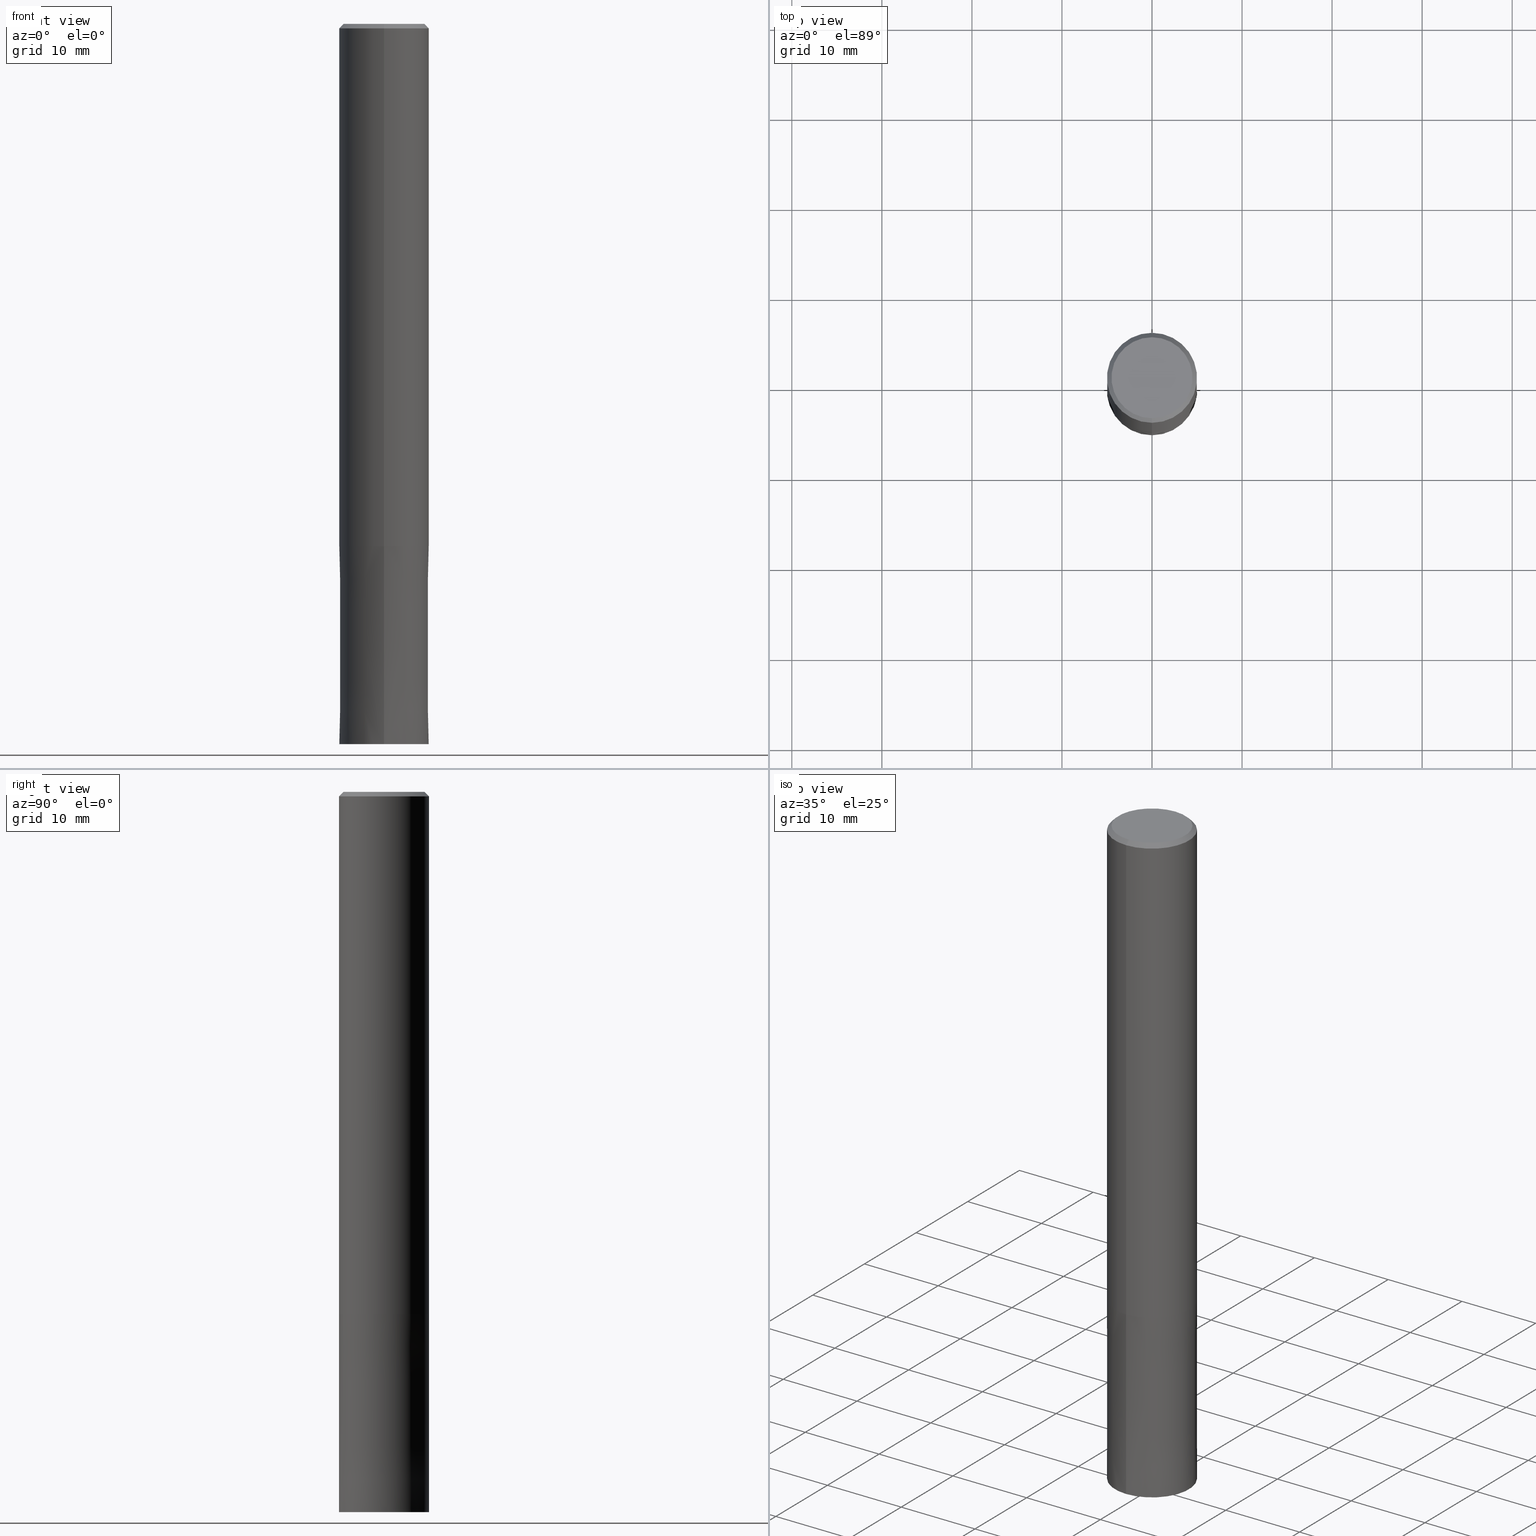
[diagram: canonical four-view strip — front | top / right | iso, engineering-drawing reading convention]
A machine part, canonical four-view strip (front | top / right | iso — engineering-drawing reading convention). The complete STEP part file that produces these views, byte-faithful:
ISO-10303-21;
HEADER;
FILE_DESCRIPTION(('no description'),'unknown implementation level');
FILE_NAME('CZS4100-2200-Huellk.stp','  ',('CIMSOURCE GmbH'),('CADClick - KiM GmbH - www.kimweb.de'),'unknown preprocess','ACIS','unknown authorization');
FILE_SCHEMA(('automotive_design'));
ENDSEC;
DATA;
#1=MECHANICAL_DESIGN_GEOMETRIC_PRESENTATION_REPRESENTATION(' ',(#10,#11,#12,#13,#14,#15,#16,#17,#18,#19,#20,#21,#22,#23,#24,#25,#26,#27,#28,#29,#30,#31,#32,#33,#34,#35,#36,#37,#38,#39,#40,#41,#42,#43,#44,#45),#6);
#2=PRODUCT_DEFINITION_CONTEXT('',#46,'design');
#3=APPLICATION_PROTOCOL_DEFINITION('INTERNATIONAL STANDARD','automotive_design',1994,#46);
#4=PRODUCT_CATEGORY_RELATIONSHIP('NONE','NONE',#47,#48);
#5=SHAPE_DEFINITION_REPRESENTATION(#49,#50);
#6= (GEOMETRIC_REPRESENTATION_CONTEXT(3)GLOBAL_UNCERTAINTY_ASSIGNED_CONTEXT((#53))GLOBAL_UNIT_ASSIGNED_CONTEXT((#55,#56,#57))REPRESENTATION_CONTEXT('NONE','WORKSPACE'));
#10=STYLED_ITEM('',(#59),#60);
#11=STYLED_ITEM('',(#61),#62);
#12=STYLED_ITEM('',(#63),#64);
#13=STYLED_ITEM('',(#65),#66);
#14=STYLED_ITEM('',(#67),#68);
#15=STYLED_ITEM('',(#69),#70);
#16=STYLED_ITEM('',(#71),#72);
#17=STYLED_ITEM('',(#73),#74);
#18=STYLED_ITEM('',(#75),#76);
#19=STYLED_ITEM('',(#77),#78);
#20=STYLED_ITEM('',(#79),#80);
#21=STYLED_ITEM('',(#81),#82);
#22=STYLED_ITEM('',(#83),#84);
#23=STYLED_ITEM('',(#85),#86);
#24=STYLED_ITEM('',(#87),#88);
#25=STYLED_ITEM('',(#89),#90);
#26=STYLED_ITEM('',(#91),#92);
#27=STYLED_ITEM('',(#93),#94);
#28=STYLED_ITEM('',(#95),#96);
#29=STYLED_ITEM('',(#97),#98);
#30=STYLED_ITEM('',(#99),#100);
#31=STYLED_ITEM('',(#101),#102);
#32=STYLED_ITEM('',(#103),#104);
#33=STYLED_ITEM('',(#105),#106);
#34=STYLED_ITEM('',(#107),#108);
#35=STYLED_ITEM('',(#109),#110);
#36=STYLED_ITEM('',(#111),#112);
#37=STYLED_ITEM('',(#113),#114);
#38=STYLED_ITEM('',(#115),#116);
#39=STYLED_ITEM('',(#117),#118);
#40=STYLED_ITEM('',(#119),#120);
#41=STYLED_ITEM('',(#121),#122);
#42=STYLED_ITEM('',(#123),#124);
#43=STYLED_ITEM('',(#125),#126);
#44=STYLED_ITEM('',(#127),#128);
#45=STYLED_ITEM('',(#129),#130);
#46=APPLICATION_CONTEXT(' ');
#47=PRODUCT_CATEGORY('part','NONE');
#48=PRODUCT_RELATED_PRODUCT_CATEGORY('detail',' ',(#131));
#49=PRODUCT_DEFINITION_SHAPE('NONE','NONE',#132);
#50=ADVANCED_BREP_SHAPE_REPRESENTATION('1',(#126,#133),#6);
#53=UNCERTAINTY_MEASURE_WITH_UNIT(LENGTH_MEASURE(1.0E-006),#55,'','');
#55= (CONVERSION_BASED_UNIT('MILLIMETRE',#136)LENGTH_UNIT()NAMED_UNIT(#139));
#56= (NAMED_UNIT(#141)PLANE_ANGLE_UNIT()SI_UNIT($,.RADIAN.));
#57= (NAMED_UNIT(#141)SOLID_ANGLE_UNIT()SI_UNIT($,.STERADIAN.));
#59=PRESENTATION_STYLE_ASSIGNMENT((#147));
#60=EDGE_CURVE('',#104,#108,#148,.T.);
#61=PRESENTATION_STYLE_ASSIGNMENT((#149));
#62=EDGE_CURVE('',#108,#86,#150,.T.);
#63=PRESENTATION_STYLE_ASSIGNMENT((#151));
#64=EDGE_CURVE('',#94,#108,#152,.T.);
#65=PRESENTATION_STYLE_ASSIGNMENT((#153));
#66=EDGE_CURVE('',#104,#106,#154,.T.);
#67=PRESENTATION_STYLE_ASSIGNMENT((#155));
#68=EDGE_CURVE('',#82,#98,#156,.T.);
#69=PRESENTATION_STYLE_ASSIGNMENT((#157));
#70=EDGE_CURVE('',#124,#112,#158,.T.);
#71=PRESENTATION_STYLE_ASSIGNMENT((#159));
#72=EDGE_CURVE('',#124,#98,#160,.T.);
#73=PRESENTATION_STYLE_ASSIGNMENT((#161));
#74=EDGE_CURVE('',#94,#106,#162,.T.);
#75=PRESENTATION_STYLE_ASSIGNMENT((#163));
#76=EDGE_CURVE('',#112,#82,#164,.T.);
#77=PRESENTATION_STYLE_ASSIGNMENT((#165));
#78=EDGE_CURVE('',#84,#86,#166,.T.);
#79=PRESENTATION_STYLE_ASSIGNMENT((#167));
#80=ADVANCED_FACE('',(#168,#169),#170,.T.);
#81=PRESENTATION_STYLE_ASSIGNMENT((#171));
#82=VERTEX_POINT('',#172);
#83=PRESENTATION_STYLE_ASSIGNMENT((#173));
#84=VERTEX_POINT('',#174);
#85=PRESENTATION_STYLE_ASSIGNMENT((#175));
#86=VERTEX_POINT('',#176);
#87=PRESENTATION_STYLE_ASSIGNMENT((#177));
#88=EDGE_CURVE('',#84,#94,#178,.T.);
#89=PRESENTATION_STYLE_ASSIGNMENT((#179));
#90=EDGE_CURVE('',#98,#124,#180,.T.);
#91=PRESENTATION_STYLE_ASSIGNMENT((#181));
#92=ADVANCED_FACE('',(#182),#183,.T.);
#93=PRESENTATION_STYLE_ASSIGNMENT((#184));
#94=VERTEX_POINT('',#185);
#95=PRESENTATION_STYLE_ASSIGNMENT((#186));
#96=EDGE_CURVE('',#86,#84,#187,.T.);
#97=PRESENTATION_STYLE_ASSIGNMENT((#188));
#98=VERTEX_POINT('',#189);
#99=PRESENTATION_STYLE_ASSIGNMENT((#190));
#100=ADVANCED_FACE('',(#191),#192,.T.);
#101=PRESENTATION_STYLE_ASSIGNMENT((#193));
#102=EDGE_CURVE('',#108,#94,#194,.T.);
#103=PRESENTATION_STYLE_ASSIGNMENT((#195));
#104=VERTEX_POINT('',#196);
#105=PRESENTATION_STYLE_ASSIGNMENT((#197));
#106=VERTEX_POINT('',#198);
#107=PRESENTATION_STYLE_ASSIGNMENT((#199));
#108=VERTEX_POINT('',#200);
#109=PRESENTATION_STYLE_ASSIGNMENT((#201));
#110=ADVANCED_FACE('',(#202),#203,.T.);
#111=PRESENTATION_STYLE_ASSIGNMENT((#204));
#112=VERTEX_POINT('',#205);
#113=PRESENTATION_STYLE_ASSIGNMENT((#206));
#114=ADVANCED_FACE('',(#207),#208,.T.);
#115=PRESENTATION_STYLE_ASSIGNMENT((#209));
#116=ADVANCED_FACE('',(#210),#211,.T.);
#117=PRESENTATION_STYLE_ASSIGNMENT((#212));
#118=EDGE_CURVE('',#82,#112,#213,.T.);
#119=PRESENTATION_STYLE_ASSIGNMENT((#214));
#120=ADVANCED_FACE('',(#215),#216,.T.);
#121=PRESENTATION_STYLE_ASSIGNMENT((#217));
#122=ADVANCED_FACE('',(#218),#219,.T.);
#123=PRESENTATION_STYLE_ASSIGNMENT((#220));
#124=VERTEX_POINT('',#221);
#125=PRESENTATION_STYLE_ASSIGNMENT((#222));
#126=MANIFOLD_SOLID_BREP('1',#223);
#127=PRESENTATION_STYLE_ASSIGNMENT((#224));
#128=ADVANCED_FACE('',(#225),#226,.T.);
#129=PRESENTATION_STYLE_ASSIGNMENT((#227));
#130=EDGE_CURVE('',#106,#104,#228,.T.);
#131=PRODUCT('1','1','PART-1-DESC',(#229));
#132=PRODUCT_DEFINITION('NONE','NONE',#230,#2);
#133=AXIS2_PLACEMENT_3D('',#231,#232,#233);
#136=LENGTH_MEASURE_WITH_UNIT(LENGTH_MEASURE(1.0),#234);
#139=DIMENSIONAL_EXPONENTS(1.0,0.0,0.0,0.0,0.0,0.0,0.0);
#141=DIMENSIONAL_EXPONENTS(0.0,0.0,0.0,0.0,0.0,0.0,0.0);
#147=CURVE_STYLE('',#235,POSITIVE_LENGTH_MEASURE(1.0E-006),#236);
#148=LINE('',#237,#238);
#149=CURVE_STYLE('',#239,POSITIVE_LENGTH_MEASURE(1.0E-006),#240);
#150=LINE('',#241,#242);
#151=CURVE_STYLE('',#243,POSITIVE_LENGTH_MEASURE(1.0E-006),#244);
#152=CIRCLE('',#245,5.0);
#153=CURVE_STYLE('',#246,POSITIVE_LENGTH_MEASURE(1.0E-006),#247);
#154=CIRCLE('',#248,4.5);
#155=CURVE_STYLE('',#249,POSITIVE_LENGTH_MEASURE(1.0E-006),#250);
#156=LINE('',#251,#252);
#157=CURVE_STYLE('',#253,POSITIVE_LENGTH_MEASURE(1.0E-006),#254);
#158=LINE('',#255,#256);
#159=CURVE_STYLE('',#257,POSITIVE_LENGTH_MEASURE(1.0E-006),#258);
#160=CIRCLE('',#259,4.9999);
#161=CURVE_STYLE('',#260,POSITIVE_LENGTH_MEASURE(1.0E-006),#261);
#162=LINE('',#262,#263);
#163=CURVE_STYLE('',#264,POSITIVE_LENGTH_MEASURE(1.0E-006),#265);
#164=CIRCLE('',#266,5.0);
#165=CURVE_STYLE('',#267,POSITIVE_LENGTH_MEASURE(1.0E-006),#268);
#166=CIRCLE('',#269,5.0);
#167=SURFACE_STYLE_USAGE(.BOTH.,#270);
#168=FACE_OUTER_BOUND('',#271,.T.);
#169=FACE_BOUND('',#272,.T.);
#170=PLANE('',#273);
#171=POINT_STYLE(' ',#274,POSITIVE_LENGTH_MEASURE(1.0E-006),#275);
#172=CARTESIAN_POINT('',(6.12303176911189E-016,-5.0,-80.0));
#173=POINT_STYLE(' ',#276,POSITIVE_LENGTH_MEASURE(1.0E-006),#277);
#174=CARTESIAN_POINT('',(6.12303176911189E-016,-5.0,-58.0));
#175=POINT_STYLE(' ',#278,POSITIVE_LENGTH_MEASURE(1.0E-006),#279);
#176=CARTESIAN_POINT('',(0.0,5.0,-58.0));
#177=CURVE_STYLE('',#280,POSITIVE_LENGTH_MEASURE(1.0E-006),#281);
#178=LINE('',#282,#283);
#179=CURVE_STYLE('',#284,POSITIVE_LENGTH_MEASURE(1.0E-006),#285);
#180=CIRCLE('',#286,4.9999);
#181=SURFACE_STYLE_USAGE(.BOTH.,#287);
#182=FACE_OUTER_BOUND('',#288,.T.);
#183=CONICAL_SURFACE('',#289,4.75,0.785398163397448);
#184=POINT_STYLE(' ',#290,POSITIVE_LENGTH_MEASURE(1.0E-006),#291);
#185=CARTESIAN_POINT('',(6.12303176911189E-016,-5.0,-0.5));
#186=CURVE_STYLE('',#292,POSITIVE_LENGTH_MEASURE(1.0E-006),#293);
#187=CIRCLE('',#294,5.0);
#188=POINT_STYLE(' ',#295,POSITIVE_LENGTH_MEASURE(1.0E-006),#296);
#189=CARTESIAN_POINT('',(6.1229093084765E-016,-4.9999,-58.0));
#190=SURFACE_STYLE_USAGE(.BOTH.,#297);
#191=FACE_OUTER_BOUND('',#298,.T.);
#192=CYLINDRICAL_SURFACE('',#299,5.0);
#193=CURVE_STYLE('',#300,POSITIVE_LENGTH_MEASURE(1.0E-006),#301);
#194=CIRCLE('',#302,5.0);
#195=POINT_STYLE(' ',#303,POSITIVE_LENGTH_MEASURE(1.0E-006),#304);
#196=CARTESIAN_POINT('',(0.0,4.5,0.0));
#197=POINT_STYLE(' ',#305,POSITIVE_LENGTH_MEASURE(1.0E-006),#306);
#198=CARTESIAN_POINT('',(5.5107285922007E-016,-4.5,0.0));
#199=POINT_STYLE(' ',#307,POSITIVE_LENGTH_MEASURE(1.0E-006),#308);
#200=CARTESIAN_POINT('',(0.0,5.0,-0.5));
#201=SURFACE_STYLE_USAGE(.BOTH.,#309);
#202=FACE_OUTER_BOUND('',#310,.T.);
#203=CONICAL_SURFACE('',#311,4.75,0.785398163397448);
#204=POINT_STYLE(' ',#312,POSITIVE_LENGTH_MEASURE(1.0E-006),#313);
#205=CARTESIAN_POINT('',(0.0,5.0,-80.0));
#206=SURFACE_STYLE_USAGE(.BOTH.,#314);
#207=FACE_OUTER_BOUND('',#315,.T.);
#208=CONICAL_SURFACE('',#316,4.99995,4.54545454541265E-006);
#209=SURFACE_STYLE_USAGE(.BOTH.,#317);
#210=FACE_OUTER_BOUND('',#318,.T.);
#211=PLANE('',#319);
#212=CURVE_STYLE('',#320,POSITIVE_LENGTH_MEASURE(1.0E-006),#321);
#213=CIRCLE('',#322,5.0);
#214=SURFACE_STYLE_USAGE(.BOTH.,#323);
#215=FACE_OUTER_BOUND('',#324,.T.);
#216=CONICAL_SURFACE('',#325,4.99995,4.54545454541265E-006);
#217=SURFACE_STYLE_USAGE(.BOTH.,#326);
#218=FACE_OUTER_BOUND('',#327,.T.);
#219=PLANE('',#328);
#220=POINT_STYLE(' ',#329,POSITIVE_LENGTH_MEASURE(1.0E-006),#330);
#221=CARTESIAN_POINT('',(0.0,4.9999,-58.0));
#222=SURFACE_STYLE_USAGE(.BOTH.,#331);
#223=CLOSED_SHELL('',(#120,#128,#110,#80,#116,#92,#100,#114,#122));
#224=SURFACE_STYLE_USAGE(.BOTH.,#332);
#225=FACE_OUTER_BOUND('',#333,.T.);
#226=CYLINDRICAL_SURFACE('',#334,5.0);
#227=CURVE_STYLE('',#335,POSITIVE_LENGTH_MEASURE(1.0E-006),#336);
#228=CIRCLE('',#337,4.5);
#229=PRODUCT_CONTEXT('',#46,'mechanical');
#230=PRODUCT_DEFINITION_FORMATION_WITH_SPECIFIED_SOURCE(' ','NONE',#131,.NOT_KNOWN.);
#231=CARTESIAN_POINT('',(0.0,0.0,0.0));
#232=DIRECTION('',(0.0,0.0,1.0));
#233=DIRECTION('',(1.0,0.0,0.0));
#234= (NAMED_UNIT(#139)LENGTH_UNIT()SI_UNIT(.MILLI.,.METRE.));
#235=DRAUGHTING_PRE_DEFINED_CURVE_FONT('continuous');
#236=COLOUR_RGB('',0.498039215803146,0.498039215803146,0.498039215803146);
#237=CARTESIAN_POINT('',(-5.81688018065629E-016,4.75,-0.25));
#238=VECTOR('',#339,1.0);
#239=DRAUGHTING_PRE_DEFINED_CURVE_FONT('continuous');
#240=COLOUR_RGB('',0.498039215803146,0.498039215803146,0.498039215803146);
#241=CARTESIAN_POINT('',(-6.12303176911189E-016,5.0,-29.25));
#242=VECTOR('',#340,1.0);
#243=DRAUGHTING_PRE_DEFINED_CURVE_FONT('continuous');
#244=COLOUR_RGB('',0.498039215803146,0.498039215803146,0.498039215803146);
#245=AXIS2_PLACEMENT_3D('',#341,#342,#343);
#246=DRAUGHTING_PRE_DEFINED_CURVE_FONT('continuous');
#247=COLOUR_RGB('',0.498039215803146,0.498039215803146,0.498039215803146);
#248=AXIS2_PLACEMENT_3D('',#344,#345,#346);
#249=DRAUGHTING_PRE_DEFINED_CURVE_FONT('continuous');
#250=COLOUR_RGB('',0.800000011920929,0.800000011920929,0.800000011920929);
#251=CARTESIAN_POINT('',(6.12297053879419E-016,-4.99995,-69.0));
#252=VECTOR('',#347,1.0);
#253=DRAUGHTING_PRE_DEFINED_CURVE_FONT('continuous');
#254=COLOUR_RGB('',0.800000011920929,0.800000011920929,0.800000011920929);
#255=CARTESIAN_POINT('',(-6.12297053879419E-016,4.99995,-69.0));
#256=VECTOR('',#348,1.0);
#257=DRAUGHTING_PRE_DEFINED_CURVE_FONT('continuous');
#258=COLOUR_RGB('',0.800000011920929,0.800000011920929,0.800000011920929);
#259=AXIS2_PLACEMENT_3D('',#349,#350,#351);
#260=DRAUGHTING_PRE_DEFINED_CURVE_FONT('continuous');
#261=COLOUR_RGB('',0.498039215803146,0.498039215803146,0.498039215803146);
#262=CARTESIAN_POINT('',(5.81688018065629E-016,-4.75,-0.25));
#263=VECTOR('',#352,1.0);
#264=DRAUGHTING_PRE_DEFINED_CURVE_FONT('continuous');
#265=COLOUR_RGB('',0.800000011920929,0.800000011920929,0.800000011920929);
#266=AXIS2_PLACEMENT_3D('',#353,#354,#355);
#267=DRAUGHTING_PRE_DEFINED_CURVE_FONT('continuous');
#268=COLOUR_RGB('',0.498039215803146,0.498039215803146,0.498039215803146);
#269=AXIS2_PLACEMENT_3D('',#356,#357,#358);
#270=SURFACE_SIDE_STYLE('',(#359));
#271=EDGE_LOOP('',(#360,#361));
#272=EDGE_LOOP('',(#362,#363));
#273=AXIS2_PLACEMENT_3D('',#364,#365,#366);
#274=PRE_DEFINED_MARKER('');
#275=COLOUR_RGB('',0.800000011920929,0.800000011920929,0.800000011920929);
#276=PRE_DEFINED_MARKER('');
#277=COLOUR_RGB('',0.498039215803146,0.498039215803146,0.498039215803146);
#278=PRE_DEFINED_MARKER('');
#279=COLOUR_RGB('',0.498039215803146,0.498039215803146,0.498039215803146);
#280=DRAUGHTING_PRE_DEFINED_CURVE_FONT('continuous');
#281=COLOUR_RGB('',0.498039215803146,0.498039215803146,0.498039215803146);
#282=CARTESIAN_POINT('',(6.12303176911189E-016,-5.0,-29.25));
#283=VECTOR('',#367,1.0);
#284=DRAUGHTING_PRE_DEFINED_CURVE_FONT('continuous');
#285=COLOUR_RGB('',0.800000011920929,0.800000011920929,0.800000011920929);
#286=AXIS2_PLACEMENT_3D('',#368,#369,#370);
#287=SURFACE_SIDE_STYLE('',(#371));
#288=EDGE_LOOP('',(#372,#373,#374,#375));
#289=AXIS2_PLACEMENT_3D('',#376,#377,#378);
#290=PRE_DEFINED_MARKER('');
#291=COLOUR_RGB('',0.498039215803146,0.498039215803146,0.498039215803146);
#292=DRAUGHTING_PRE_DEFINED_CURVE_FONT('continuous');
#293=COLOUR_RGB('',0.498039215803146,0.498039215803146,0.498039215803146);
#294=AXIS2_PLACEMENT_3D('',#379,#380,#381);
#295=PRE_DEFINED_MARKER('');
#296=COLOUR_RGB('',0.800000011920929,0.800000011920929,0.800000011920929);
#297=SURFACE_SIDE_STYLE('',(#382));
#298=EDGE_LOOP('',(#383,#384,#385,#386));
#299=AXIS2_PLACEMENT_3D('',#387,#388,#389);
#300=DRAUGHTING_PRE_DEFINED_CURVE_FONT('continuous');
#301=COLOUR_RGB('',0.498039215803146,0.498039215803146,0.498039215803146);
#302=AXIS2_PLACEMENT_3D('',#390,#391,#392);
#303=PRE_DEFINED_MARKER('');
#304=COLOUR_RGB('',0.498039215803146,0.498039215803146,0.498039215803146);
#305=PRE_DEFINED_MARKER('');
#306=COLOUR_RGB('',0.498039215803146,0.498039215803146,0.498039215803146);
#307=PRE_DEFINED_MARKER('');
#308=COLOUR_RGB('',0.498039215803146,0.498039215803146,0.498039215803146);
#309=SURFACE_SIDE_STYLE('',(#393));
#310=EDGE_LOOP('',(#394,#395,#396,#397));
#311=AXIS2_PLACEMENT_3D('',#398,#399,#400);
#312=PRE_DEFINED_MARKER('');
#313=COLOUR_RGB('',0.800000011920929,0.800000011920929,0.800000011920929);
#314=SURFACE_SIDE_STYLE('',(#401));
#315=EDGE_LOOP('',(#402,#403,#404,#405));
#316=AXIS2_PLACEMENT_3D('',#406,#407,#408);
#317=SURFACE_SIDE_STYLE('',(#409));
#318=EDGE_LOOP('',(#410,#411));
#319=AXIS2_PLACEMENT_3D('',#412,#413,#414);
#320=DRAUGHTING_PRE_DEFINED_CURVE_FONT('continuous');
#321=COLOUR_RGB('',0.800000011920929,0.800000011920929,0.800000011920929);
#322=AXIS2_PLACEMENT_3D('',#415,#416,#417);
#323=SURFACE_SIDE_STYLE('',(#418));
#324=EDGE_LOOP('',(#419,#420,#421,#422));
#325=AXIS2_PLACEMENT_3D('',#423,#424,#425);
#326=SURFACE_SIDE_STYLE('',(#426));
#327=EDGE_LOOP('',(#427,#428));
#328=AXIS2_PLACEMENT_3D('',#429,#430,#431);
#329=PRE_DEFINED_MARKER('');
#330=COLOUR_RGB('',0.800000011920929,0.800000011920929,0.800000011920929);
#331=SURFACE_SIDE_STYLE('',(#432));
#332=SURFACE_SIDE_STYLE('',(#433));
#333=EDGE_LOOP('',(#434,#435,#436,#437));
#334=AXIS2_PLACEMENT_3D('',#438,#439,#440);
#335=DRAUGHTING_PRE_DEFINED_CURVE_FONT('continuous');
#336=COLOUR_RGB('',0.498039215803146,0.498039215803146,0.498039215803146);
#337=AXIS2_PLACEMENT_3D('',#441,#442,#443);
#339=DIRECTION('',(-8.65927457071936E-017,0.707106781186548,-0.707106781186548));
#340=DIRECTION('',(0.0,0.0,-1.0));
#341=CARTESIAN_POINT('',(0.0,0.0,-0.5));
#342=DIRECTION('',(0.0,0.0,-1.0));
#343=DIRECTION('',(0.0,1.0,0.0));
#344=CARTESIAN_POINT('',(0.0,0.0,0.0));
#345=DIRECTION('',(0.0,0.0,-1.0));
#346=DIRECTION('',(0.0,1.0,0.0));
#347=DIRECTION('',(-5.56639251730396E-022,4.545454545397E-006,0.999999999989669));
#348=DIRECTION('',(-5.56639251730397E-022,4.545454545397E-006,-0.999999999989669));
#349=CARTESIAN_POINT('',(0.0,0.0,-58.0));
#350=DIRECTION('',(0.0,0.0,-1.0));
#351=DIRECTION('',(0.0,1.0,0.0));
#352=DIRECTION('',(-8.65927457071936E-017,0.707106781186548,0.707106781186548));
#353=CARTESIAN_POINT('',(0.0,0.0,-80.0));
#354=DIRECTION('',(0.0,0.0,-1.0));
#355=DIRECTION('',(0.0,1.0,0.0));
#356=CARTESIAN_POINT('',(0.0,0.0,-58.0));
#357=DIRECTION('',(0.0,0.0,-1.0));
#358=DIRECTION('',(0.0,1.0,0.0));
#359=SURFACE_STYLE_FILL_AREA(#444);
#360=ORIENTED_EDGE('',*,*,#96,.T.);
#361=ORIENTED_EDGE('',*,*,#78,.T.);
#362=ORIENTED_EDGE('',*,*,#72,.F.);
#363=ORIENTED_EDGE('',*,*,#90,.F.);
#364=CARTESIAN_POINT('',(0.0,2.5,-58.0));
#365=DIRECTION('',(0.0,0.0,-1.0));
#366=DIRECTION('',(0.0,1.0,0.0));
#367=DIRECTION('',(-0.0,-0.0,1.0));
#368=CARTESIAN_POINT('',(0.0,0.0,-58.0));
#369=DIRECTION('',(0.0,0.0,-1.0));
#370=DIRECTION('',(0.0,1.0,0.0));
#371=SURFACE_STYLE_FILL_AREA(#445);
#372=ORIENTED_EDGE('',*,*,#60,.T.);
#373=ORIENTED_EDGE('',*,*,#64,.F.);
#374=ORIENTED_EDGE('',*,*,#74,.T.);
#375=ORIENTED_EDGE('',*,*,#130,.T.);
#376=CARTESIAN_POINT('',(0.0,0.0,-0.25));
#377=DIRECTION('',(0.0,-0.0,-1.0));
#378=DIRECTION('',(0.0,1.0,0.0));
#379=CARTESIAN_POINT('',(0.0,0.0,-58.0));
#380=DIRECTION('',(0.0,0.0,-1.0));
#381=DIRECTION('',(0.0,1.0,0.0));
#382=SURFACE_STYLE_FILL_AREA(#446);
#383=ORIENTED_EDGE('',*,*,#62,.T.);
#384=ORIENTED_EDGE('',*,*,#78,.F.);
#385=ORIENTED_EDGE('',*,*,#88,.T.);
#386=ORIENTED_EDGE('',*,*,#64,.T.);
#387=CARTESIAN_POINT('',(0.0,0.0,-29.25));
#388=DIRECTION('',(-0.0,-0.0,1.0));
#389=DIRECTION('',(0.0,1.0,0.0));
#390=CARTESIAN_POINT('',(0.0,0.0,-0.5));
#391=DIRECTION('',(0.0,0.0,-1.0));
#392=DIRECTION('',(0.0,1.0,0.0));
#393=SURFACE_STYLE_FILL_AREA(#447);
#394=ORIENTED_EDGE('',*,*,#60,.F.);
#395=ORIENTED_EDGE('',*,*,#66,.T.);
#396=ORIENTED_EDGE('',*,*,#74,.F.);
#397=ORIENTED_EDGE('',*,*,#102,.F.);
#398=CARTESIAN_POINT('',(0.0,0.0,-0.25));
#399=DIRECTION('',(0.0,-0.0,-1.0));
#400=DIRECTION('',(0.0,1.0,0.0));
#401=SURFACE_STYLE_FILL_AREA(#448);
#402=ORIENTED_EDGE('',*,*,#70,.T.);
#403=ORIENTED_EDGE('',*,*,#118,.F.);
#404=ORIENTED_EDGE('',*,*,#68,.T.);
#405=ORIENTED_EDGE('',*,*,#90,.T.);
#406=CARTESIAN_POINT('',(0.0,0.0,-69.0));
#407=DIRECTION('',(0.0,-0.0,-1.0));
#408=DIRECTION('',(0.0,1.0,0.0));
#409=SURFACE_STYLE_FILL_AREA(#449);
#410=ORIENTED_EDGE('',*,*,#66,.F.);
#411=ORIENTED_EDGE('',*,*,#130,.F.);
#412=CARTESIAN_POINT('',(0.0,2.25,0.0));
#413=DIRECTION('',(-0.0,0.0,1.0));
#414=DIRECTION('',(0.0,-1.0,0.0));
#415=CARTESIAN_POINT('',(0.0,0.0,-80.0));
#416=DIRECTION('',(0.0,0.0,-1.0));
#417=DIRECTION('',(0.0,1.0,0.0));
#418=SURFACE_STYLE_FILL_AREA(#450);
#419=ORIENTED_EDGE('',*,*,#70,.F.);
#420=ORIENTED_EDGE('',*,*,#72,.T.);
#421=ORIENTED_EDGE('',*,*,#68,.F.);
#422=ORIENTED_EDGE('',*,*,#76,.F.);
#423=CARTESIAN_POINT('',(0.0,0.0,-69.0));
#424=DIRECTION('',(0.0,-0.0,-1.0));
#425=DIRECTION('',(0.0,1.0,0.0));
#426=SURFACE_STYLE_FILL_AREA(#451);
#427=ORIENTED_EDGE('',*,*,#76,.T.);
#428=ORIENTED_EDGE('',*,*,#118,.T.);
#429=CARTESIAN_POINT('',(0.0,2.4975,-80.0));
#430=DIRECTION('',(0.0,0.0,-1.0));
#431=DIRECTION('',(0.0,1.0,0.0));
#432=SURFACE_STYLE_FILL_AREA(#452);
#433=SURFACE_STYLE_FILL_AREA(#453);
#434=ORIENTED_EDGE('',*,*,#62,.F.);
#435=ORIENTED_EDGE('',*,*,#102,.T.);
#436=ORIENTED_EDGE('',*,*,#88,.F.);
#437=ORIENTED_EDGE('',*,*,#96,.F.);
#438=CARTESIAN_POINT('',(0.0,0.0,-29.25));
#439=DIRECTION('',(-0.0,-0.0,1.0));
#440=DIRECTION('',(0.0,1.0,0.0));
#441=CARTESIAN_POINT('',(0.0,0.0,0.0));
#442=DIRECTION('',(0.0,0.0,-1.0));
#443=DIRECTION('',(0.0,1.0,0.0));
#444=FILL_AREA_STYLE('',(#454));
#445=FILL_AREA_STYLE('',(#455));
#446=FILL_AREA_STYLE('',(#456));
#447=FILL_AREA_STYLE('',(#457));
#448=FILL_AREA_STYLE('',(#458));
#449=FILL_AREA_STYLE('',(#459));
#450=FILL_AREA_STYLE('',(#460));
#451=FILL_AREA_STYLE('',(#461));
#452=FILL_AREA_STYLE('',(#462));
#453=FILL_AREA_STYLE('',(#463));
#454=FILL_AREA_STYLE_COLOUR('',#464);
#455=FILL_AREA_STYLE_COLOUR('',#465);
#456=FILL_AREA_STYLE_COLOUR('',#466);
#457=FILL_AREA_STYLE_COLOUR('',#467);
#458=FILL_AREA_STYLE_COLOUR('',#468);
#459=FILL_AREA_STYLE_COLOUR('',#469);
#460=FILL_AREA_STYLE_COLOUR('',#470);
#461=FILL_AREA_STYLE_COLOUR('',#471);
#462=FILL_AREA_STYLE_COLOUR('',#472);
#463=FILL_AREA_STYLE_COLOUR('',#473);
#464=COLOUR_RGB('',0.498039215803146,0.498039215803146,0.498039215803146);
#465=COLOUR_RGB('',0.498039215803146,0.498039215803146,0.498039215803146);
#466=COLOUR_RGB('',0.498039215803146,0.498039215803146,0.498039215803146);
#467=COLOUR_RGB('',0.498039215803146,0.498039215803146,0.498039215803146);
#468=COLOUR_RGB('',0.800000011920929,0.800000011920929,0.800000011920929);
#469=COLOUR_RGB('',0.498039215803146,0.498039215803146,0.498039215803146);
#470=COLOUR_RGB('',0.800000011920929,0.800000011920929,0.800000011920929);
#471=COLOUR_RGB('',0.800000011920929,0.800000011920929,0.800000011920929);
#472=COLOUR_RGB('',0.800000011920929,0.800000011920929,0.800000011920929);
#473=COLOUR_RGB('',0.498039215803146,0.498039215803146,0.498039215803146);
#474=AXIS2_PLACEMENT_3D('PCS',#475,#476,#477);
#475=CARTESIAN_POINT('',(0.0,0.0,0.0));
#476=DIRECTION('',(0.0,0.0,1.0));
#477=DIRECTION('',(1.0,0.0,0.0));
#478=AXIS2_PLACEMENT_3D('CIP',#479,#480,#481);
#479=CARTESIAN_POINT('',(0.0,0.0,-80.0));
#480=DIRECTION('',(0.0,0.0,1.0));
#481=DIRECTION('',(1.0,0.0,0.0));
#482=AXIS2_PLACEMENT_3D('CRP',#483,#484,#485);
#483=CARTESIAN_POINT('',(-5.0,0.0,-80.0));
#484=DIRECTION('',(0.0,0.0,1.0));
#485=DIRECTION('',(1.0,0.0,0.0));
#486=AXIS2_PLACEMENT_3D('MCS',#487,#488,#489);
#487=CARTESIAN_POINT('',(0.0,0.0,-58.0));
#488=DIRECTION('',(0.0,0.0,1.0));
#489=DIRECTION('',(1.0,0.0,0.0));
#490=CONSTRUCTIVE_GEOMETRY_REPRESENTATION_RELATIONSHIP('coordinate systems',$,#50,#491);
#491=CONSTRUCTIVE_GEOMETRY_REPRESENTATION('coordinate systems',(#474,#478,#482,#486),#6);
ENDSEC;
END-ISO-10303-21;
